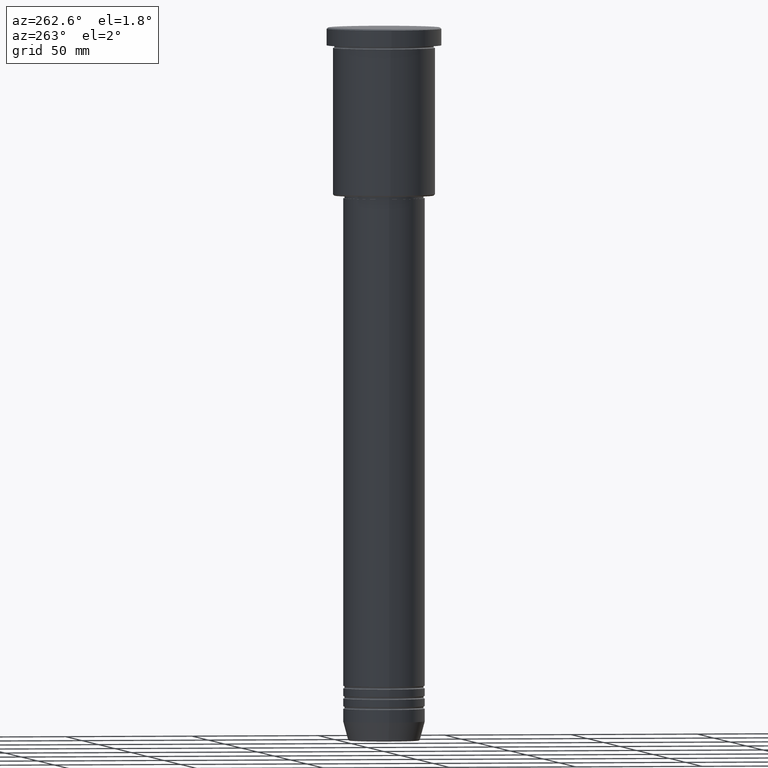
[diagram: clean part render]
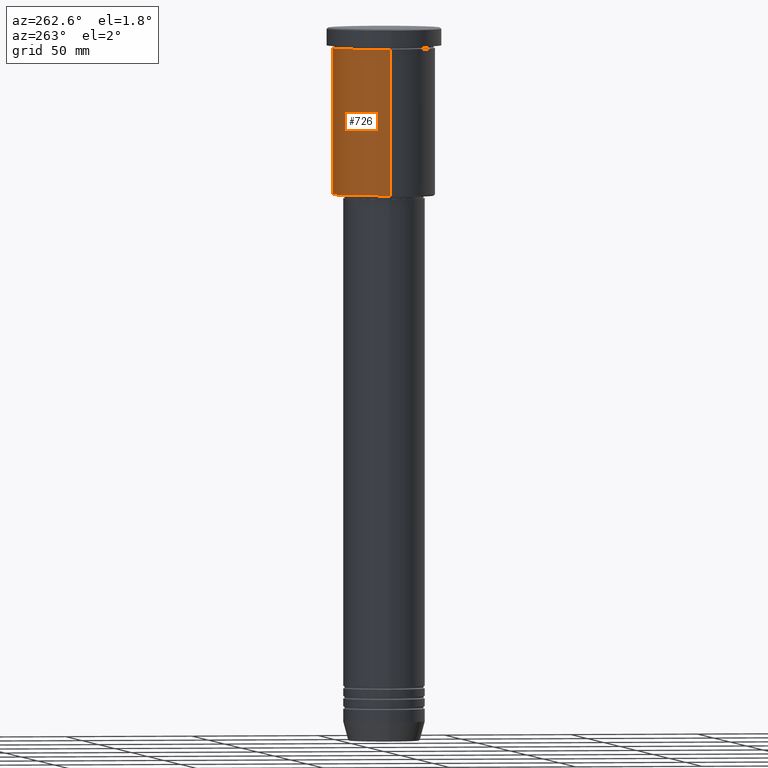
[diagram: same view with one face highlighted and labeled with its STEP entity id]
A machine part, auxiliary view. The second image highlights one B-rep face of the part: STEP entity #726.
In plain terms, the highlighted cylindrical surface (partial cylindrical patch) has radius 20 mm, axis along (-0, -0, 1).
Its self-contained STEP definition (entity closure, byte-faithful):
#16 = DIRECTION ( 'NONE',  ( -0.000000000000000000, -0.000000000000000000, 1.000000000000000000 ) ) ;
#84 = AXIS2_PLACEMENT_3D ( 'NONE', #419, #266, #206 ) ;
#122 = DIRECTION ( 'NONE',  ( -0.000000000000000000, -0.000000000000000000, 1.000000000000000000 ) ) ;
#177 = LINE ( 'NONE', #192, #700 ) ;
#183 = VERTEX_POINT ( 'NONE', #741 ) ;
#192 = CARTESIAN_POINT ( 'NONE',  ( 20.00000000000000355, 0.000000000000000000, 0.000000000000000000 ) ) ;
#206 = DIRECTION ( 'NONE',  ( 1.000000000000000000, 0.000000000000000000, 0.000000000000000000 ) ) ;
#266 = DIRECTION ( 'NONE',  ( -0.000000000000000000, -0.000000000000000000, 1.000000000000000000 ) ) ;
#278 = CIRCLE ( 'NONE', #578, 20.00000000000000355 ) ;
#288 = CARTESIAN_POINT ( 'NONE',  ( 20.00000000000000355, 0.000000000000000000, -65.49999999999994316 ) ) ;
#304 = CARTESIAN_POINT ( 'NONE',  ( -20.00000000000000355, 2.449293598294706907E-15, 0.000000000000000000 ) ) ;
#394 = EDGE_CURVE ( 'NONE', #1120, #811, #1078, .T. ) ;
#401 = DIRECTION ( 'NONE',  ( -1.000000000000000000, 0.000000000000000000, 0.000000000000000000 ) ) ;
#415 = VERTEX_POINT ( 'NONE', #288 ) ;
#419 = CARTESIAN_POINT ( 'NONE',  ( 0.000000000000000000, 0.000000000000000000, -7.999999999999994671 ) ) ;
#497 = AXIS2_PLACEMENT_3D ( 'NONE', #989, #890, #619 ) ;
#563 = EDGE_CURVE ( 'NONE', #415, #183, #278, .T. ) ;
#568 = EDGE_LOOP ( 'NONE', ( #982, #881, #1113, #1153 ) ) ;
#578 = AXIS2_PLACEMENT_3D ( 'NONE', #1095, #686, #401 ) ;
#608 = CARTESIAN_POINT ( 'NONE',  ( 20.00000000000000000, 0.000000000000000000, -7.999999999999994671 ) ) ;
#619 = DIRECTION ( 'NONE',  ( 1.000000000000000000, 0.000000000000000000, 0.000000000000000000 ) ) ;
#686 = DIRECTION ( 'NONE',  ( -0.000000000000000000, -0.000000000000000000, 1.000000000000000000 ) ) ;
#700 = VECTOR ( 'NONE', #16, 1000.000000000000000 ) ;
#703 = FACE_OUTER_BOUND ( 'NONE', #568, .T. ) ;
#715 = CYLINDRICAL_SURFACE ( 'NONE', #497, 20.00000000000000355 ) ;
#726 = ADVANCED_FACE ( 'NONE', ( #703 ), #715, .T. ) ;
#741 = CARTESIAN_POINT ( 'NONE',  ( -20.00000000000000355, 2.449293598294706907E-15, -65.49999999999994316 ) ) ;
#755 = VECTOR ( 'NONE', #122, 1000.000000000000000 ) ;
#811 = VERTEX_POINT ( 'NONE', #967 ) ;
#881 = ORIENTED_EDGE ( 'NONE', *, *, #1026, .T. ) ;
#890 = DIRECTION ( 'NONE',  ( -0.000000000000000000, -0.000000000000000000, 1.000000000000000000 ) ) ;
#935 = EDGE_CURVE ( 'NONE', #415, #1120, #177, .T. ) ;
#967 = CARTESIAN_POINT ( 'NONE',  ( -20.00000000000000000, 2.449293598294706513E-15, -7.999999999999994671 ) ) ;
#982 = ORIENTED_EDGE ( 'NONE', *, *, #563, .T. ) ;
#989 = CARTESIAN_POINT ( 'NONE',  ( 0.000000000000000000, 0.000000000000000000, 0.000000000000000000 ) ) ;
#1026 = EDGE_CURVE ( 'NONE', #183, #811, #1145, .T. ) ;
#1078 = CIRCLE ( 'NONE', #84, 20.00000000000000000 ) ;
#1095 = CARTESIAN_POINT ( 'NONE',  ( 0.000000000000000000, 0.000000000000000000, -65.49999999999994316 ) ) ;
#1113 = ORIENTED_EDGE ( 'NONE', *, *, #394, .F. ) ;
#1120 = VERTEX_POINT ( 'NONE', #608 ) ;
#1145 = LINE ( 'NONE', #304, #755 ) ;
#1153 = ORIENTED_EDGE ( 'NONE', *, *, #935, .F. ) ;